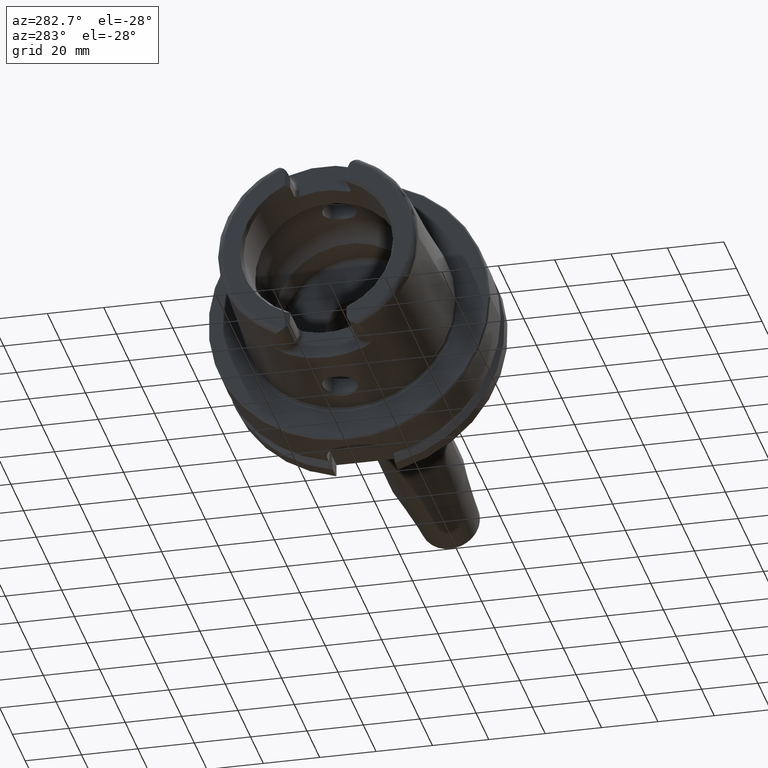
[diagram: clean part render]
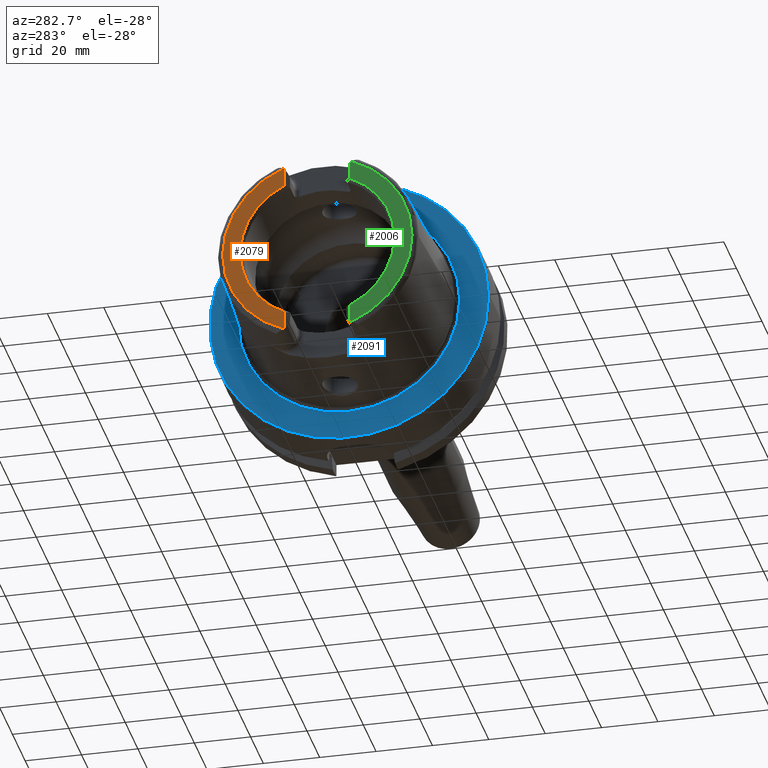
[diagram: same view with three faces highlighted in distinct colors, each labeled with its STEP entity id]
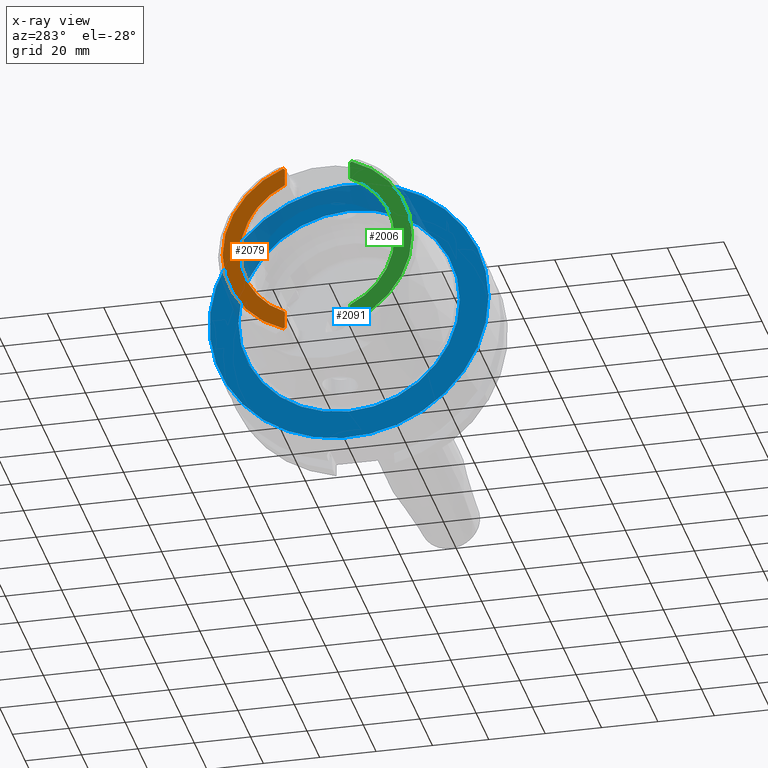
[diagram: x-ray of the same camera — body ghosted, the three highlighted faces saturated]
A machine part, auxiliary view with three faces highlighted in distinct colors.
The next image is the same camera in x-ray (body ghosted, the three faces saturated) — at least one of them is partly hidden behind the body in this view.
Their STEP definitions:

[orange] entity #2079 — the highlighted planar face has unit normal (-1, 0, 0).
#129=PLANE('',#2333);
#304=FACE_OUTER_BOUND('',#433,.T.);
#433=EDGE_LOOP('',(#1861,#1862,#1863,#1864,#1865,#1866));
#482=LINE('',#3120,#590);
#494=LINE('',#3231,#602);
#590=VECTOR('',#2502,10.);
#602=VECTOR('',#2562,10.);
#701=CIRCLE('',#2175,4.88);
#712=CIRCLE('',#2200,4.88);
#776=CIRCLE('',#2325,27.3660254037844);
#777=CIRCLE('',#2329,33.6001839277785);
#842=VERTEX_POINT('',#3113);
#845=VERTEX_POINT('',#3118);
#848=VERTEX_POINT('',#3128);
#869=VERTEX_POINT('',#3228);
#870=VERTEX_POINT('',#3230);
#875=VERTEX_POINT('',#3249);
#1063=EDGE_CURVE('',#845,#842,#482,.T.);
#1067=EDGE_CURVE('',#848,#842,#701,.T.);
#1094=EDGE_CURVE('',#869,#870,#494,.T.);
#1101=EDGE_CURVE('',#869,#875,#712,.T.);
#1289=EDGE_CURVE('',#870,#845,#776,.T.);
#1291=EDGE_CURVE('',#848,#875,#777,.T.);
#1861=ORIENTED_EDGE('',*,*,#1063,.F.);
#1862=ORIENTED_EDGE('',*,*,#1289,.F.);
#1863=ORIENTED_EDGE('',*,*,#1094,.F.);
#1864=ORIENTED_EDGE('',*,*,#1101,.T.);
#1865=ORIENTED_EDGE('',*,*,#1291,.F.);
#1866=ORIENTED_EDGE('',*,*,#1067,.T.);
#2079=ADVANCED_FACE('',(#304),#129,.T.);
#2175=AXIS2_PLACEMENT_3D('',#3129,#2510,#2511);
#2200=AXIS2_PLACEMENT_3D('',#3262,#2571,#2572);
#2325=AXIS2_PLACEMENT_3D('',#4445,#2883,#2884);
#2329=AXIS2_PLACEMENT_3D('',#4450,#2892,#2893);
#2333=AXIS2_PLACEMENT_3D('',#4457,#2901,#2902);
#2502=DIRECTION('',(0.,0.,-1.));
#2510=DIRECTION('center_axis',(-1.,0.,0.));
#2511=DIRECTION('ref_axis',(0.,-0.477884921181368,0.878422450821629));
#2562=DIRECTION('',(0.,0.,-1.));
#2571=DIRECTION('center_axis',(-1.,0.,0.));
#2572=DIRECTION('ref_axis',(0.,1.,0.));
#2883=DIRECTION('center_axis',(-1.,0.,0.));
#2884=DIRECTION('ref_axis',(0.,-1.,0.));
#2892=DIRECTION('center_axis',(1.,0.,0.));
#2893=DIRECTION('ref_axis',(0.,0.,-1.));
#2901=DIRECTION('center_axis',(-1.,0.,0.));
#2902=DIRECTION('ref_axis',(0.,0.,1.));
#3113=CARTESIAN_POINT('',(-50.,11.51,-30.8899431813596));
#3118=CARTESIAN_POINT('',(-50.,11.51,-24.8277918148307));
#3120=CARTESIAN_POINT('',(-50.,11.51,-10.));
#3128=CARTESIAN_POINT('',(-50.,12.0743049948301,-31.355757348091));
#3129=CARTESIAN_POINT('Origin',(-50.,14.89,-27.37));
#3228=CARTESIAN_POINT('',(-50.,11.51,30.8899431813596));
#3230=CARTESIAN_POINT('',(-50.,11.51,24.8277918148307));
#3231=CARTESIAN_POINT('',(-50.,11.51,13.685));
#3249=CARTESIAN_POINT('',(-50.,12.0743049948301,31.355757348091));
#3262=CARTESIAN_POINT('Origin',(-50.,14.89,27.37));
#4445=CARTESIAN_POINT('Origin',(-50.,0.,0.));
#4450=CARTESIAN_POINT('Origin',(-50.,0.,0.));
#4457=CARTESIAN_POINT('Origin',(-50.,33.6001839277785,0.));

[blue] entity #2091 — the highlighted planar face has unit normal (-1, 0, 0).
#97=FACE_BOUND('',#449,.T.);
#133=PLANE('',#2362);
#316=FACE_OUTER_BOUND('',#448,.T.);
#448=EDGE_LOOP('',(#1915));
#449=EDGE_LOOP('',(#1916));
#796=CIRCLE('',#2361,39.2747800249997);
#797=CIRCLE('',#2363,49.5);
#1009=VERTEX_POINT('',#4502);
#1010=VERTEX_POINT('',#4506);
#1316=EDGE_CURVE('',#1009,#1009,#796,.T.);
#1317=EDGE_CURVE('',#1010,#1010,#797,.T.);
#1915=ORIENTED_EDGE('',*,*,#1317,.F.);
#1916=ORIENTED_EDGE('',*,*,#1316,.T.);
#2091=ADVANCED_FACE('',(#316,#97),#133,.T.);
#2361=AXIS2_PLACEMENT_3D('',#4504,#2962,#2963);
#2362=AXIS2_PLACEMENT_3D('',#4505,#2964,#2965);
#2363=AXIS2_PLACEMENT_3D('',#4507,#2966,#2967);
#2962=DIRECTION('center_axis',(1.,0.,0.));
#2963=DIRECTION('ref_axis',(0.,0.,-1.));
#2964=DIRECTION('center_axis',(-1.,0.,0.));
#2965=DIRECTION('ref_axis',(0.,0.,1.));
#2966=DIRECTION('center_axis',(1.,0.,0.));
#2967=DIRECTION('ref_axis',(0.,0.,-1.));
#4502=CARTESIAN_POINT('',(-1.04950770296597E-15,-39.2747800249997,-4.80977336448322E-15));
#4504=CARTESIAN_POINT('Origin',(0.,0.,0.));
#4505=CARTESIAN_POINT('Origin',(0.,49.5,0.));
#4506=CARTESIAN_POINT('',(1.28369537222284E-15,-49.5,-6.0620016557794E-15));
#4507=CARTESIAN_POINT('Origin',(0.,0.,0.));

[green] entity #2006 — the highlighted planar face has unit normal (-1, 0, 0).
#105=PLANE('',#2186);
#231=FACE_OUTER_BOUND('',#357,.T.);
#357=EDGE_LOOP('',(#1436,#1437,#1438,#1439,#1440,#1441));
#487=LINE('',#3172,#595);
#489=LINE('',#3191,#597);
#595=VECTOR('',#2521,10.);
#597=VECTOR('',#2543,10.);
#704=CIRCLE('',#2182,27.3660254037844);
#707=CIRCLE('',#2187,4.88);
#708=CIRCLE('',#2188,33.6001839277785);
#709=CIRCLE('',#2189,4.88);
#854=VERTEX_POINT('',#3169);
#855=VERTEX_POINT('',#3171);
#857=VERTEX_POINT('',#3177);
#860=VERTEX_POINT('',#3185);
#861=VERTEX_POINT('',#3187);
#862=VERTEX_POINT('',#3189);
#1074=EDGE_CURVE('',#854,#855,#487,.T.);
#1077=EDGE_CURVE('',#855,#857,#704,.T.);
#1081=EDGE_CURVE('',#854,#860,#707,.T.);
#1082=EDGE_CURVE('',#861,#860,#708,.T.);
#1083=EDGE_CURVE('',#861,#862,#709,.T.);
#1084=EDGE_CURVE('',#857,#862,#489,.T.);
#1436=ORIENTED_EDGE('',*,*,#1074,.F.);
#1437=ORIENTED_EDGE('',*,*,#1081,.T.);
#1438=ORIENTED_EDGE('',*,*,#1082,.F.);
#1439=ORIENTED_EDGE('',*,*,#1083,.T.);
#1440=ORIENTED_EDGE('',*,*,#1084,.F.);
#1441=ORIENTED_EDGE('',*,*,#1077,.F.);
#2006=ADVANCED_FACE('',(#231),#105,.T.);
#2182=AXIS2_PLACEMENT_3D('',#3178,#2527,#2528);
#2186=AXIS2_PLACEMENT_3D('',#3184,#2535,#2536);
#2187=AXIS2_PLACEMENT_3D('',#3186,#2537,#2538);
#2188=AXIS2_PLACEMENT_3D('',#3188,#2539,#2540);
#2189=AXIS2_PLACEMENT_3D('',#3190,#2541,#2542);
#2521=DIRECTION('',(0.,0.,1.));
#2527=DIRECTION('center_axis',(-1.,0.,0.));
#2528=DIRECTION('ref_axis',(0.,-1.,0.));
#2535=DIRECTION('center_axis',(-1.,0.,0.));
#2536=DIRECTION('ref_axis',(0.,0.,1.));
#2537=DIRECTION('center_axis',(-1.,0.,0.));
#2538=DIRECTION('ref_axis',(0.,-1.,0.));
#2539=DIRECTION('center_axis',(1.,0.,0.));
#2540=DIRECTION('ref_axis',(0.,0.,-1.));
#2541=DIRECTION('center_axis',(-1.,0.,0.));
#2542=DIRECTION('ref_axis',(0.,0.477884921181369,-0.878422450821629));
#2543=DIRECTION('',(0.,0.,1.));
#3169=CARTESIAN_POINT('',(-50.,-11.51,-30.8899431813596));
#3171=CARTESIAN_POINT('',(-50.,-11.51,-24.8277918148307));
#3172=CARTESIAN_POINT('',(-50.,-11.51,-13.685));
#3177=CARTESIAN_POINT('',(-50.,-11.51,24.8277918148307));
#3178=CARTESIAN_POINT('Origin',(-50.,0.,0.));
#3184=CARTESIAN_POINT('Origin',(-50.,33.6001839277785,0.));
#3185=CARTESIAN_POINT('',(-50.,-12.0743049948301,-31.355757348091));
#3186=CARTESIAN_POINT('Origin',(-50.,-14.89,-27.37));
#3187=CARTESIAN_POINT('',(-50.,-12.0743049948301,31.355757348091));
#3188=CARTESIAN_POINT('Origin',(-50.,0.,0.));
#3189=CARTESIAN_POINT('',(-50.,-11.51,30.8899431813596));
#3190=CARTESIAN_POINT('Origin',(-50.,-14.89,27.37));
#3191=CARTESIAN_POINT('',(-50.,-11.51,9.));